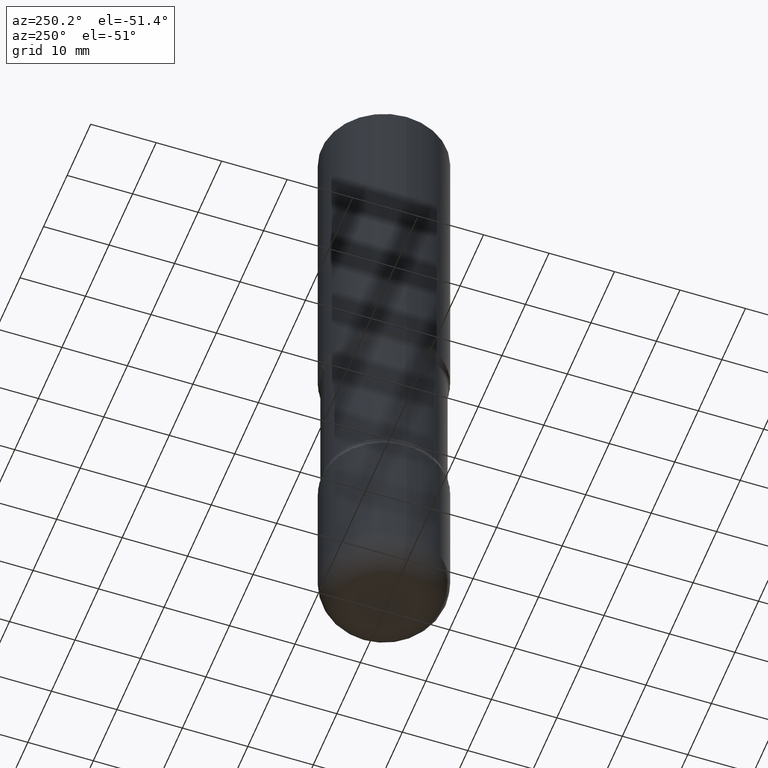
[diagram: clean part render]
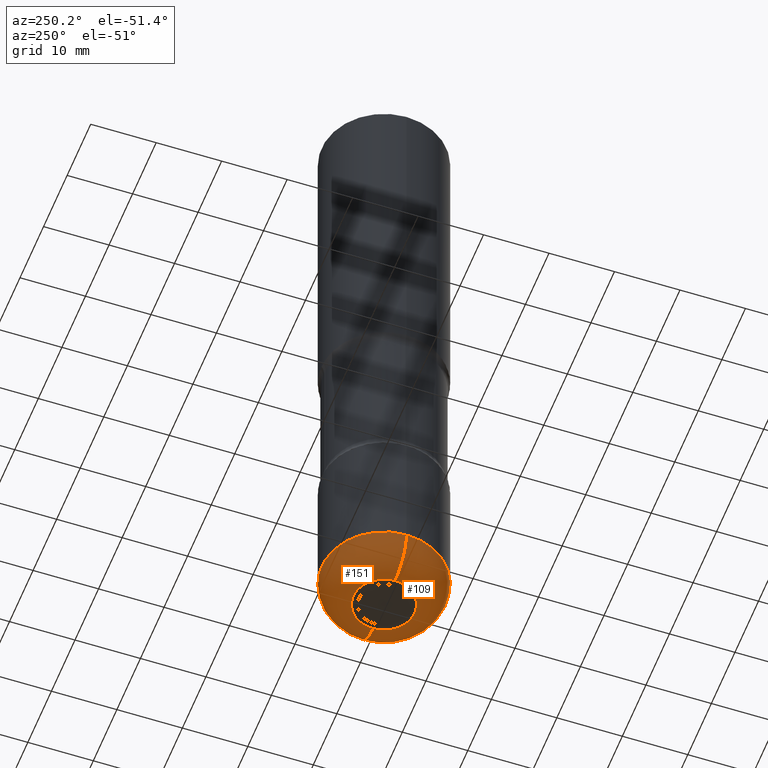
[diagram: same view with one multi-face feature highlighted, each face labeled with its STEP entity id]
A machine part, auxiliary view. The highlighted faces form ONE feature: a constant-radius fillet chain: 2 tangent blend faces with common blend radius 4.826 mm. The faces share edges in the B-rep.
Their STEP definitions:
[1] entity #151 (Torus):
#46 = AXIS2_PLACEMENT_3D ( 'NONE', #175, #227, #291 ) ;
#48 = VERTEX_POINT ( 'NONE', #118 ) ;
#81 = ORIENTED_EDGE ( 'NONE', *, *, #805, .T. ) ;
#83 = ORIENTED_EDGE ( 'NONE', *, *, #534, .F. ) ;
#91 = DIRECTION ( 'NONE',  ( 1.000000000000000000, -6.982962677686271444E-15, 0.000000000000000000 ) ) ;
#98 = DIRECTION ( 'NONE',  ( -2.445468806185136597E-29, 3.491481338843145583E-15, 1.000000000000000000 ) ) ;
#118 = CARTESIAN_POINT ( 'NONE',  ( -0.1850000000000001088, -1.164471496805420174E-14, -4.000000000000000888 ) ) ;
#133 = EDGE_CURVE ( 'NONE', #48, #282, #801, .T. ) ;
#142 = CIRCLE ( 'NONE', #689, 0.3750000000000000555 ) ;
#151 = ADVANCED_FACE ( 'NONE', ( #337 ), #206, .T. ) ;
#168 = CARTESIAN_POINT ( 'NONE',  ( 0.1850000000000001088, -1.525777345074454388E-14, -4.000000000000000888 ) ) ;
#170 = CIRCLE ( 'NONE', #611, 0.1850000000000001088 ) ;
#171 = DIRECTION ( 'NONE',  ( 1.000000000000000000, -6.982962677686266711E-15, 0.000000000000000000 ) ) ;
#175 = CARTESIAN_POINT ( 'NONE',  ( 0.1850000000000000810, -1.459439199636434413E-14, -3.810000000000000053 ) ) ;
#206 = TOROIDAL_SURFACE ( 'NONE', #242, 0.1850000000000000810, 0.1900000000000001965 ) ;
#227 = DIRECTION ( 'NONE',  ( -6.982962677686266711E-15, -1.000000000000000000, 3.491481338843145583E-15 ) ) ;
#242 = AXIS2_PLACEMENT_3D ( 'NONE', #726, #98, #536 ) ;
#282 = VERTEX_POINT ( 'NONE', #307 ) ;
#291 = DIRECTION ( 'NONE',  ( 1.000000000000000000, -6.982962677686265133E-15, 0.000000000000000000 ) ) ;
#293 = DIRECTION ( 'NONE',  ( 7.105427357601001859E-15, 1.000000000000000000, -3.491481338843145583E-15 ) ) ;
#307 = CARTESIAN_POINT ( 'NONE',  ( -0.3750000000000001110, -1.063800864189200846E-14, -3.810000000000000053 ) ) ;
#337 = FACE_OUTER_BOUND ( 'NONE', #718, .T. ) ;
#380 = CARTESIAN_POINT ( 'NONE',  ( 9.781875224740547508E-29, -1.396592535537258391E-14, -4.000000000000000888 ) ) ;
#401 = CIRCLE ( 'NONE', #46, 0.1900000000000001688 ) ;
#441 = ORIENTED_EDGE ( 'NONE', *, *, #601, .F. ) ;
#462 = DIRECTION ( 'NONE',  ( -2.445468806185136597E-29, 3.491481338843145583E-15, 1.000000000000000000 ) ) ;
#534 = EDGE_CURVE ( 'NONE', #623, #282, #142, .T. ) ;
#536 = DIRECTION ( 'NONE',  ( 1.000000000000000000, -6.982962677686269077E-15, 4.883557194083113462E-29 ) ) ;
#593 = AXIS2_PLACEMENT_3D ( 'NONE', #736, #293, #675 ) ;
#601 = EDGE_CURVE ( 'NONE', #690, #623, #401, .T. ) ;
#611 = AXIS2_PLACEMENT_3D ( 'NONE', #380, #637, #91 ) ;
#612 = ORIENTED_EDGE ( 'NONE', *, *, #133, .T. ) ;
#623 = VERTEX_POINT ( 'NONE', #790 ) ;
#637 = DIRECTION ( 'NONE',  ( -2.445468806185136597E-29, 3.491481338843145583E-15, 1.000000000000000000 ) ) ;
#675 = DIRECTION ( 'NONE',  ( -1.000000000000000000, 7.105427357601001859E-15, 0.000000000000000000 ) ) ;
#689 = AXIS2_PLACEMENT_3D ( 'NONE', #774, #462, #171 ) ;
#690 = VERTEX_POINT ( 'NONE', #168 ) ;
#718 = EDGE_LOOP ( 'NONE', ( #81, #612, #83, #441 ) ) ;
#726 = CARTESIAN_POINT ( 'NONE',  ( 9.317236151565370389E-29, -1.330254390099238573E-14, -3.810000000000000053 ) ) ;
#736 = CARTESIAN_POINT ( 'NONE',  ( -0.1850000000000000810, -1.198803983983620001E-14, -3.810000000000000053 ) ) ;
#774 = CARTESIAN_POINT ( 'NONE',  ( 9.317236151565370389E-29, -1.330254390099238573E-14, -3.810000000000000053 ) ) ;
#790 = CARTESIAN_POINT ( 'NONE',  ( 0.3750000000000001110, -1.592115490512473732E-14, -3.810000000000000053 ) ) ;
#801 = CIRCLE ( 'NONE', #593, 0.1900000000000001688 ) ;
#805 = EDGE_CURVE ( 'NONE', #690, #48, #170, .T. ) ;
[2] entity #109 (Torus):
#35 = AXIS2_PLACEMENT_3D ( 'NONE', #495, #57, #434 ) ;
#36 = DIRECTION ( 'NONE',  ( 1.000000000000000000, -6.982962677686266711E-15, 0.000000000000000000 ) ) ;
#46 = AXIS2_PLACEMENT_3D ( 'NONE', #175, #227, #291 ) ;
#48 = VERTEX_POINT ( 'NONE', #118 ) ;
#53 = EDGE_CURVE ( 'NONE', #282, #623, #751, .T. ) ;
#57 = DIRECTION ( 'NONE',  ( -2.445468806185136597E-29, 3.491481338843145583E-15, 1.000000000000000000 ) ) ;
#78 = ORIENTED_EDGE ( 'NONE', *, *, #714, .T. ) ;
#94 = AXIS2_PLACEMENT_3D ( 'NONE', #104, #356, #239 ) ;
#95 = CIRCLE ( 'NONE', #35, 0.1850000000000001088 ) ;
#104 = CARTESIAN_POINT ( 'NONE',  ( 9.317236151565370389E-29, -1.330254390099238573E-14, -3.810000000000000053 ) ) ;
#109 = ADVANCED_FACE ( 'NONE', ( #785 ), #753, .T. ) ;
#118 = CARTESIAN_POINT ( 'NONE',  ( -0.1850000000000001088, -1.164471496805420174E-14, -4.000000000000000888 ) ) ;
#133 = EDGE_CURVE ( 'NONE', #48, #282, #801, .T. ) ;
#159 = DIRECTION ( 'NONE',  ( -2.445468806185136597E-29, 3.491481338843145583E-15, 1.000000000000000000 ) ) ;
#164 = ORIENTED_EDGE ( 'NONE', *, *, #133, .F. ) ;
#168 = CARTESIAN_POINT ( 'NONE',  ( 0.1850000000000001088, -1.525777345074454388E-14, -4.000000000000000888 ) ) ;
#175 = CARTESIAN_POINT ( 'NONE',  ( 0.1850000000000000810, -1.459439199636434413E-14, -3.810000000000000053 ) ) ;
#227 = DIRECTION ( 'NONE',  ( -6.982962677686266711E-15, -1.000000000000000000, 3.491481338843145583E-15 ) ) ;
#239 = DIRECTION ( 'NONE',  ( 1.000000000000000000, -6.982962677686269077E-15, 4.883557194083113462E-29 ) ) ;
#250 = EDGE_LOOP ( 'NONE', ( #164, #78, #429, #338 ) ) ;
#282 = VERTEX_POINT ( 'NONE', #307 ) ;
#291 = DIRECTION ( 'NONE',  ( 1.000000000000000000, -6.982962677686265133E-15, 0.000000000000000000 ) ) ;
#293 = DIRECTION ( 'NONE',  ( 7.105427357601001859E-15, 1.000000000000000000, -3.491481338843145583E-15 ) ) ;
#297 = AXIS2_PLACEMENT_3D ( 'NONE', #724, #159, #36 ) ;
#307 = CARTESIAN_POINT ( 'NONE',  ( -0.3750000000000001110, -1.063800864189200846E-14, -3.810000000000000053 ) ) ;
#338 = ORIENTED_EDGE ( 'NONE', *, *, #53, .F. ) ;
#356 = DIRECTION ( 'NONE',  ( -2.445468806185136597E-29, 3.491481338843145583E-15, 1.000000000000000000 ) ) ;
#401 = CIRCLE ( 'NONE', #46, 0.1900000000000001688 ) ;
#429 = ORIENTED_EDGE ( 'NONE', *, *, #601, .T. ) ;
#434 = DIRECTION ( 'NONE',  ( 1.000000000000000000, -6.982962677686271444E-15, 0.000000000000000000 ) ) ;
#495 = CARTESIAN_POINT ( 'NONE',  ( 9.781875224740547508E-29, -1.396592535537258391E-14, -4.000000000000000888 ) ) ;
#593 = AXIS2_PLACEMENT_3D ( 'NONE', #736, #293, #675 ) ;
#601 = EDGE_CURVE ( 'NONE', #690, #623, #401, .T. ) ;
#623 = VERTEX_POINT ( 'NONE', #790 ) ;
#675 = DIRECTION ( 'NONE',  ( -1.000000000000000000, 7.105427357601001859E-15, 0.000000000000000000 ) ) ;
#690 = VERTEX_POINT ( 'NONE', #168 ) ;
#714 = EDGE_CURVE ( 'NONE', #48, #690, #95, .T. ) ;
#724 = CARTESIAN_POINT ( 'NONE',  ( 9.317236151565370389E-29, -1.330254390099238573E-14, -3.810000000000000053 ) ) ;
#736 = CARTESIAN_POINT ( 'NONE',  ( -0.1850000000000000810, -1.198803983983620001E-14, -3.810000000000000053 ) ) ;
#751 = CIRCLE ( 'NONE', #297, 0.3750000000000000555 ) ;
#753 = TOROIDAL_SURFACE ( 'NONE', #94, 0.1850000000000000810, 0.1900000000000001965 ) ;
#785 = FACE_OUTER_BOUND ( 'NONE', #250, .T. ) ;
#790 = CARTESIAN_POINT ( 'NONE',  ( 0.3750000000000001110, -1.592115490512473732E-14, -3.810000000000000053 ) ) ;
#801 = CIRCLE ( 'NONE', #593, 0.1900000000000001688 ) ;